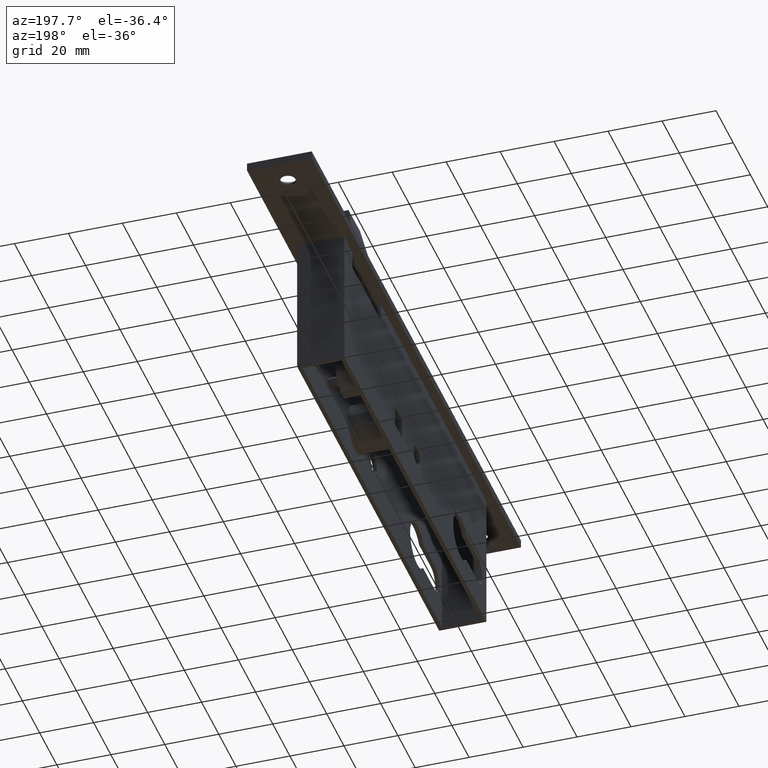
[diagram: clean part render]
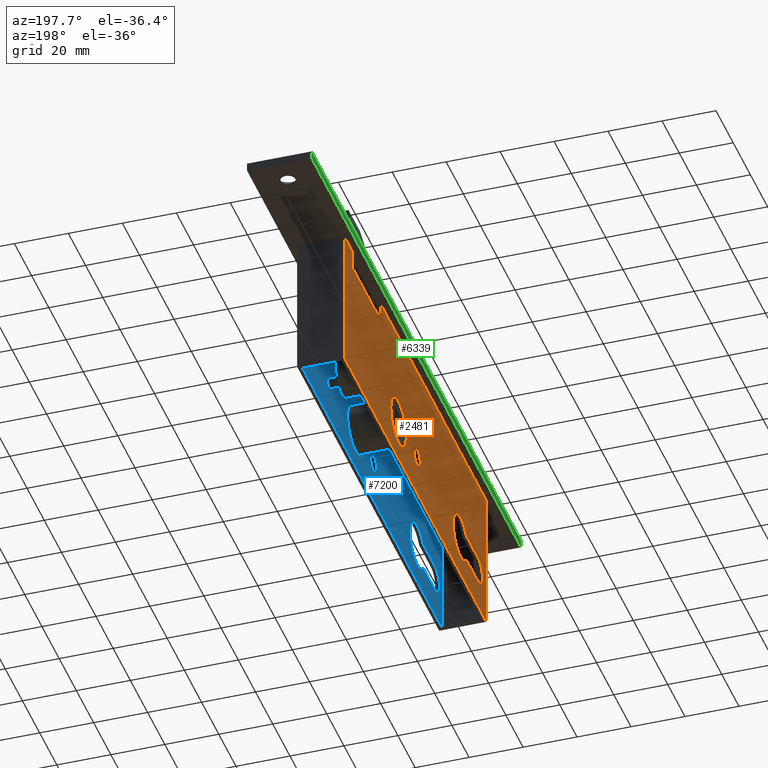
[diagram: same view with three faces highlighted in distinct colors, each labeled with its STEP entity id]
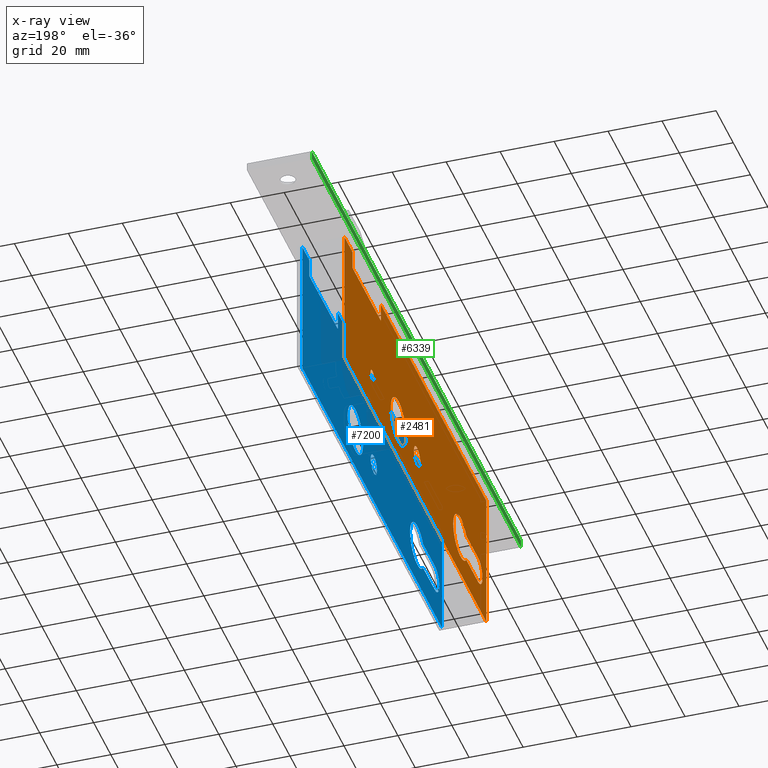
[diagram: x-ray of the same camera — body ghosted, the three highlighted faces saturated]
A machine part, auxiliary view with three faces highlighted in distinct colors.
The next image is the same camera in x-ray (body ghosted, the three faces saturated) — at least one of them is partly hidden behind the body in this view.
Their STEP definitions:

[orange] entity #2481 — the highlighted planar face has unit normal (1, -0, 0).
#92 = EDGE_CURVE ( 'NONE', #420, #6940, #1876, .T. ) ;
#162 = CARTESIAN_POINT ( 'NONE',  ( -8.749999999999998200, 60.00000000000000000, -37.00000000000000700 ) ) ;
#205 = CARTESIAN_POINT ( 'NONE',  ( -8.749999999999980500, 195.0000000000000000, -53.00000000000000000 ) ) ;
#234 = CARTESIAN_POINT ( 'NONE',  ( -8.749999999999991100, 110.5000000000000100, -37.00000000000000700 ) ) ;
#299 = ORIENTED_EDGE ( 'NONE', *, *, #11477, .T. ) ;
#332 = CARTESIAN_POINT ( 'NONE',  ( -8.750000000000001800, 152.5000000000000000, -7.000000000000004400 ) ) ;
#335 = ORIENTED_EDGE ( 'NONE', *, *, #10299, .T. ) ;
#420 = VERTEX_POINT ( 'NONE', #332 ) ;
#532 = ORIENTED_EDGE ( 'NONE', *, *, #5417, .F. ) ;
#587 = VECTOR ( 'NONE', #1703, 1000.000000000000000 ) ;
#602 = VERTEX_POINT ( 'NONE', #7357 ) ;
#607 = AXIS2_PLACEMENT_3D ( 'NONE', #11773, #3119, #1016 ) ;
#612 = DIRECTION ( 'NONE',  ( 0.0000000000000000000, 1.000000000000000000, 0.0000000000000000000 ) ) ;
#744 = CIRCLE ( 'NONE', #1205, 3.699999999999994800 ) ;
#850 = DIRECTION ( 'NONE',  ( 1.261617073437677800E-016, 1.000000000000000000, -0.0000000000000000000 ) ) ;
#946 = AXIS2_PLACEMENT_3D ( 'NONE', #5907, #2722, #8207 ) ;
#1016 = DIRECTION ( 'NONE',  ( 1.927470528863111400E-016, 1.000000000000000000, 0.0000000000000000000 ) ) ;
#1205 = AXIS2_PLACEMENT_3D ( 'NONE', #234, #7838, #3517 ) ;
#1208 = CARTESIAN_POINT ( 'NONE',  ( -8.749999999999998200, 39.75000000000000000, -42.25000000000000700 ) ) ;
#1273 = CARTESIAN_POINT ( 'NONE',  ( -8.750000000000001800, 185.5000000000000000, 0.0000000000000000000 ) ) ;
#1289 = CARTESIAN_POINT ( 'NONE',  ( -8.749999999999998200, 60.00000000000000000, -37.00000000000000700 ) ) ;
#1450 = FACE_BOUND ( 'NONE', #12677, .T. ) ;
#1615 = DIRECTION ( 'NONE',  ( -1.261617073437677800E-016, -1.000000000000000000, 0.0000000000000000000 ) ) ;
#1703 = DIRECTION ( 'NONE',  ( 0.0000000000000000000, 0.0000000000000000000, 1.000000000000000000 ) ) ;
#1711 = CARTESIAN_POINT ( 'NONE',  ( -8.749999999999980500, 195.0000000000000000, -31.75000000000000000 ) ) ;
#1722 = CARTESIAN_POINT ( 'NONE',  ( -8.749999999999996400, 68.49999999999998600, -37.00000000000000700 ) ) ;
#1741 = DIRECTION ( 'NONE',  ( 0.0000000000000000000, 1.000000000000000000, 0.0000000000000000000 ) ) ;
#1765 = CARTESIAN_POINT ( 'NONE',  ( -8.749999999999998200, 39.75000000000000000, -31.75000000000000000 ) ) ;
#1804 = CARTESIAN_POINT ( 'NONE',  ( -8.749999999999980500, 195.0000000000000000, 0.0000000000000000000 ) ) ;
#1876 = LINE ( 'NONE', #6869, #4417 ) ;
#1922 = EDGE_CURVE ( 'NONE', #4850, #13785, #6399, .T. ) ;
#1953 = ORIENTED_EDGE ( 'NONE', *, *, #4915, .T. ) ;
#1978 = FACE_OUTER_BOUND ( 'NONE', #4349, .T. ) ;
#2082 = DIRECTION ( 'NONE',  ( 1.261617073437677800E-016, 1.000000000000000000, 0.0000000000000000000 ) ) ;
#2161 = DIRECTION ( 'NONE',  ( 0.0000000000000000000, 1.000000000000000000, 0.0000000000000000000 ) ) ;
#2390 = VERTEX_POINT ( 'NONE', #1722 ) ;
#2445 = ORIENTED_EDGE ( 'NONE', *, *, #92, .T. ) ;
#2481 = ADVANCED_FACE ( 'NONE', ( #13073, #4865, #1450, #3520, #1978 ), #14049, .F. ) ;
#2722 = DIRECTION ( 'NONE',  ( 1.000000000000000000, -1.261617073437677800E-016, 0.0000000000000000000 ) ) ;
#3092 = VERTEX_POINT ( 'NONE', #1208 ) ;
#3118 = AXIS2_PLACEMENT_3D ( 'NONE', #11716, #10717, #8526 ) ;
#3119 = DIRECTION ( 'NONE',  ( 1.000000000000000000, -1.261617073437677800E-016, 0.0000000000000000000 ) ) ;
#3189 = EDGE_CURVE ( 'NONE', #5306, #10434, #5877, .T. ) ;
#3325 = CARTESIAN_POINT ( 'NONE',  ( -8.749999999999980500, 195.0000000000000000, -42.25000000000000700 ) ) ;
#3373 = EDGE_CURVE ( 'NONE', #10201, #2390, #6202, .T. ) ;
#3517 = DIRECTION ( 'NONE',  ( 0.0000000000000000000, 1.000000000000000000, 0.0000000000000000000 ) ) ;
#3520 = FACE_BOUND ( 'NONE', #8317, .T. ) ;
#3587 = VECTOR ( 'NONE', #850, 1000.000000000000000 ) ;
#3617 = CARTESIAN_POINT ( 'NONE',  ( -8.749999999999980500, 195.0000000000000000, -53.00000000000000000 ) ) ;
#3632 = AXIS2_PLACEMENT_3D ( 'NONE', #9738, #7590, #2161 ) ;
#3741 = CARTESIAN_POINT ( 'NONE',  ( -8.750000000000001800, 152.5000000000000000, -7.000000000000004400 ) ) ;
#3842 = ORIENTED_EDGE ( 'NONE', *, *, #4807, .T. ) ;
#4084 = CARTESIAN_POINT ( 'NONE',  ( -8.749999999999998200, 53.31512902143953200, -42.25000000000000700 ) ) ;
#4279 = VERTEX_POINT ( 'NONE', #5456 ) ;
#4349 = EDGE_LOOP ( 'NONE', ( #5017, #335, #6606, #532, #13549, #11478, #12841, #2445 ) ) ;
#4417 = VECTOR ( 'NONE', #13428, 1000.000000000000000 ) ;
#4550 = CARTESIAN_POINT ( 'NONE',  ( -8.749999999999991100, 106.8000000000000300, -37.00000000000000700 ) ) ;
#4567 = VERTEX_POINT ( 'NONE', #1765 ) ;
#4637 = AXIS2_PLACEMENT_3D ( 'NONE', #11455, #8321, #1741 ) ;
#4642 = EDGE_CURVE ( 'NONE', #6940, #10647, #11813, .T. ) ;
#4747 = CARTESIAN_POINT ( 'NONE',  ( -8.750000000000001800, 160.5500000000000100, -38.00000000000000000 ) ) ;
#4807 = EDGE_CURVE ( 'NONE', #3092, #10201, #6860, .T. ) ;
#4850 = VERTEX_POINT ( 'NONE', #9710 ) ;
#4865 = FACE_BOUND ( 'NONE', #12495, .T. ) ;
#4885 = CIRCLE ( 'NONE', #6964, 8.499999999999992900 ) ;
#4915 = EDGE_CURVE ( 'NONE', #10253, #7323, #744, .T. ) ;
#4935 = CARTESIAN_POINT ( 'NONE',  ( -8.750000000000001800, 185.5000000000000000, 0.0000000000000000000 ) ) ;
#5017 = ORIENTED_EDGE ( 'NONE', *, *, #4642, .T. ) ;
#5147 = VECTOR ( 'NONE', #12250, 1000.000000000000000 ) ;
#5225 = CARTESIAN_POINT ( 'NONE',  ( -8.749999999999980500, 195.0000000000000000, -53.00000000000000000 ) ) ;
#5306 = VERTEX_POINT ( 'NONE', #5225 ) ;
#5332 = ORIENTED_EDGE ( 'NONE', *, *, #1922, .T. ) ;
#5417 = EDGE_CURVE ( 'NONE', #12494, #5306, #8238, .T. ) ;
#5433 = CARTESIAN_POINT ( 'NONE',  ( -8.749999999999980500, 195.0000000000000000, 0.0000000000000000000 ) ) ;
#5456 = CARTESIAN_POINT ( 'NONE',  ( -8.749999999999985800, 152.5000000000000000, 0.0000000000000000000 ) ) ;
#5532 = ORIENTED_EDGE ( 'NONE', *, *, #7120, .T. ) ;
#5877 = LINE ( 'NONE', #3617, #11329 ) ;
#5907 = CARTESIAN_POINT ( 'NONE',  ( -8.749999999999987600, 132.0000000000000000, -37.00000000000000700 ) ) ;
#6202 = CIRCLE ( 'NONE', #10241, 8.499999999999992900 ) ;
#6277 = EDGE_CURVE ( 'NONE', #602, #6616, #8852, .T. ) ;
#6319 = CARTESIAN_POINT ( 'NONE',  ( -8.750000000000000000, 30.00000000000000000, -0.0000000000000000000 ) ) ;
#6399 = CIRCLE ( 'NONE', #4637, 2.000000000000001800 ) ;
#6458 = CARTESIAN_POINT ( 'NONE',  ( -8.749999999999996400, 53.31512902143953200, -31.75000000000000000 ) ) ;
#6504 = CARTESIAN_POINT ( 'NONE',  ( -8.749999999999980500, 195.0000000000000000, 0.0000000000000000000 ) ) ;
#6606 = ORIENTED_EDGE ( 'NONE', *, *, #3189, .F. ) ;
#6616 = VERTEX_POINT ( 'NONE', #13530 ) ;
#6688 = LINE ( 'NONE', #1711, #9278 ) ;
#6860 = LINE ( 'NONE', #3325, #7036 ) ;
#6869 = CARTESIAN_POINT ( 'NONE',  ( -8.750000000000001800, 185.5000000000000000, -7.000000000000000000 ) ) ;
#6940 = VERTEX_POINT ( 'NONE', #10861 ) ;
#6964 = AXIS2_PLACEMENT_3D ( 'NONE', #1289, #13090, #9971 ) ;
#7027 = EDGE_CURVE ( 'NONE', #6616, #602, #11531, .T. ) ;
#7036 = VECTOR ( 'NONE', #2082, 1000.000000000000000 ) ;
#7120 = EDGE_CURVE ( 'NONE', #2390, #10287, #4885, .T. ) ;
#7250 = LINE ( 'NONE', #3741, #9816 ) ;
#7323 = VERTEX_POINT ( 'NONE', #4550 ) ;
#7357 = CARTESIAN_POINT ( 'NONE',  ( -8.749999999999985800, 141.0000000000000300, -37.00000000000000700 ) ) ;
#7590 = DIRECTION ( 'NONE',  ( 1.000000000000000000, -1.261617073437677800E-016, 0.0000000000000000000 ) ) ;
#7646 = DIRECTION ( 'NONE',  ( 0.0000000000000000000, 1.000000000000000000, 0.0000000000000000000 ) ) ;
#7838 = DIRECTION ( 'NONE',  ( 1.000000000000000000, -1.261617073437677800E-016, 0.0000000000000000000 ) ) ;
#8101 = DIRECTION ( 'NONE',  ( 0.0000000000000000000, -0.0000000000000000000, -1.000000000000000000 ) ) ;
#8108 = ORIENTED_EDGE ( 'NONE', *, *, #6277, .T. ) ;
#8126 = EDGE_CURVE ( 'NONE', #4279, #420, #7250, .T. ) ;
#8207 = DIRECTION ( 'NONE',  ( 1.927470528863111400E-016, 1.000000000000000000, 0.0000000000000000000 ) ) ;
#8238 = LINE ( 'NONE', #205, #5147 ) ;
#8317 = EDGE_LOOP ( 'NONE', ( #1953, #12623 ) ) ;
#8321 = DIRECTION ( 'NONE',  ( 1.000000000000000000, -1.051347561198064900E-017, -0.0000000000000000000 ) ) ;
#8329 = VECTOR ( 'NONE', #9192, 1000.000000000000000 ) ;
#8526 = DIRECTION ( 'NONE',  ( 1.261617073437677800E-016, 1.000000000000000000, 0.0000000000000000000 ) ) ;
#8557 = CARTESIAN_POINT ( 'NONE',  ( -8.749999999999991100, 114.2000000000000000, -37.00000000000000700 ) ) ;
#8852 = CIRCLE ( 'NONE', #946, 9.000000000000035500 ) ;
#9019 = LINE ( 'NONE', #10519, #8329 ) ;
#9056 = VECTOR ( 'NONE', #13113, 1000.000000000000000 ) ;
#9192 = DIRECTION ( 'NONE',  ( -0.0000000000000000000, -0.0000000000000000000, 1.000000000000000000 ) ) ;
#9236 = EDGE_CURVE ( 'NONE', #10287, #4567, #6688, .T. ) ;
#9278 = VECTOR ( 'NONE', #1615, 1000.000000000000000 ) ;
#9710 = CARTESIAN_POINT ( 'NONE',  ( -8.750000000000001800, 164.5500000000000100, -38.00000000000000000 ) ) ;
#9738 = CARTESIAN_POINT ( 'NONE',  ( -8.749999999999998200, 39.75000000000000000, -37.00000000000000700 ) ) ;
#9816 = VECTOR ( 'NONE', #8101, 1000.000000000000000 ) ;
#9971 = DIRECTION ( 'NONE',  ( 2.040851148208010000E-016, 1.000000000000000000, 0.0000000000000000000 ) ) ;
#10117 = AXIS2_PLACEMENT_3D ( 'NONE', #12534, #10374, #612 ) ;
#10201 = VERTEX_POINT ( 'NONE', #4084 ) ;
#10232 = VERTEX_POINT ( 'NONE', #6319 ) ;
#10241 = AXIS2_PLACEMENT_3D ( 'NONE', #162, #13129, #10946 ) ;
#10253 = VERTEX_POINT ( 'NONE', #8557 ) ;
#10287 = VERTEX_POINT ( 'NONE', #6458 ) ;
#10299 = EDGE_CURVE ( 'NONE', #10647, #10434, #13492, .T. ) ;
#10352 = EDGE_LOOP ( 'NONE', ( #5332, #13261 ) ) ;
#10374 = DIRECTION ( 'NONE',  ( 1.000000000000000000, -1.261617073437677800E-016, 0.0000000000000000000 ) ) ;
#10404 = CIRCLE ( 'NONE', #11939, 2.000000000000001800 ) ;
#10434 = VERTEX_POINT ( 'NONE', #5433 ) ;
#10519 = CARTESIAN_POINT ( 'NONE',  ( -8.750000000000000000, 30.00000000000000000, -53.00000000000000000 ) ) ;
#10647 = VERTEX_POINT ( 'NONE', #1273 ) ;
#10717 = DIRECTION ( 'NONE',  ( 1.000000000000000000, -1.261617073437677800E-016, 0.0000000000000000000 ) ) ;
#10742 = EDGE_CURVE ( 'NONE', #12494, #10232, #9019, .T. ) ;
#10830 = ORIENTED_EDGE ( 'NONE', *, *, #7027, .T. ) ;
#10861 = CARTESIAN_POINT ( 'NONE',  ( -8.750000000000001800, 185.5000000000000000, -7.000000000000000000 ) ) ;
#10946 = DIRECTION ( 'NONE',  ( 2.040851148208010000E-016, 1.000000000000000000, 0.0000000000000000000 ) ) ;
#11113 = CIRCLE ( 'NONE', #10117, 3.699999999999994800 ) ;
#11329 = VECTOR ( 'NONE', #12328, 1000.000000000000000 ) ;
#11455 = CARTESIAN_POINT ( 'NONE',  ( -8.750000000000001800, 162.5500000000000100, -38.00000000000000000 ) ) ;
#11477 = EDGE_CURVE ( 'NONE', #4567, #3092, #13285, .T. ) ;
#11478 = ORIENTED_EDGE ( 'NONE', *, *, #14163, .T. ) ;
#11531 = CIRCLE ( 'NONE', #607, 9.000000000000035500 ) ;
#11716 = CARTESIAN_POINT ( 'NONE',  ( -8.749999999999980500, 195.0000000000000000, -53.00000000000000000 ) ) ;
#11773 = CARTESIAN_POINT ( 'NONE',  ( -8.749999999999987600, 132.0000000000000000, -37.00000000000000700 ) ) ;
#11813 = LINE ( 'NONE', #4935, #587 ) ;
#11939 = AXIS2_PLACEMENT_3D ( 'NONE', #14078, #13059, #7646 ) ;
#11955 = CARTESIAN_POINT ( 'NONE',  ( -8.750000000000000000, 30.00000000000000000, -53.00000000000000000 ) ) ;
#12250 = DIRECTION ( 'NONE',  ( 1.261617073437677800E-016, 1.000000000000000000, -0.0000000000000000000 ) ) ;
#12328 = DIRECTION ( 'NONE',  ( -0.0000000000000000000, -0.0000000000000000000, 1.000000000000000000 ) ) ;
#12494 = VERTEX_POINT ( 'NONE', #11955 ) ;
#12495 = EDGE_LOOP ( 'NONE', ( #13872, #299, #3842, #12880, #5532 ) ) ;
#12534 = CARTESIAN_POINT ( 'NONE',  ( -8.749999999999991100, 110.5000000000000100, -37.00000000000000700 ) ) ;
#12623 = ORIENTED_EDGE ( 'NONE', *, *, #12961, .T. ) ;
#12677 = EDGE_LOOP ( 'NONE', ( #8108, #10830 ) ) ;
#12841 = ORIENTED_EDGE ( 'NONE', *, *, #8126, .T. ) ;
#12880 = ORIENTED_EDGE ( 'NONE', *, *, #3373, .T. ) ;
#12961 = EDGE_CURVE ( 'NONE', #7323, #10253, #11113, .T. ) ;
#13059 = DIRECTION ( 'NONE',  ( 1.000000000000000000, -1.051347561198064900E-017, -0.0000000000000000000 ) ) ;
#13073 = FACE_BOUND ( 'NONE', #10352, .T. ) ;
#13090 = DIRECTION ( 'NONE',  ( 1.000000000000000000, -1.261617073437677800E-016, 0.0000000000000000000 ) ) ;
#13113 = DIRECTION ( 'NONE',  ( 1.261617073437677800E-016, 1.000000000000000000, -0.0000000000000000000 ) ) ;
#13129 = DIRECTION ( 'NONE',  ( 1.000000000000000000, -1.261617073437677800E-016, 0.0000000000000000000 ) ) ;
#13261 = ORIENTED_EDGE ( 'NONE', *, *, #14169, .T. ) ;
#13285 = CIRCLE ( 'NONE', #3632, 5.250000000000004400 ) ;
#13311 = LINE ( 'NONE', #1804, #3587 ) ;
#13428 = DIRECTION ( 'NONE',  ( 0.0000000000000000000, 1.000000000000000000, 1.314184451497581000E-016 ) ) ;
#13492 = LINE ( 'NONE', #6504, #9056 ) ;
#13530 = CARTESIAN_POINT ( 'NONE',  ( -8.749999999999989300, 122.9999999999999900, -37.00000000000000700 ) ) ;
#13549 = ORIENTED_EDGE ( 'NONE', *, *, #10742, .T. ) ;
#13785 = VERTEX_POINT ( 'NONE', #4747 ) ;
#13872 = ORIENTED_EDGE ( 'NONE', *, *, #9236, .T. ) ;
#14049 = PLANE ( 'NONE',  #3118 ) ;
#14078 = CARTESIAN_POINT ( 'NONE',  ( -8.750000000000001800, 162.5500000000000100, -38.00000000000000000 ) ) ;
#14163 = EDGE_CURVE ( 'NONE', #10232, #4279, #13311, .T. ) ;
#14169 = EDGE_CURVE ( 'NONE', #13785, #4850, #10404, .T. ) ;

[blue] entity #7200 — the highlighted planar face has unit normal (-1, -0, 0).
#3 = VERTEX_POINT ( 'NONE', #13007 ) ;
#4 = CARTESIAN_POINT ( 'NONE',  ( 7.249999999999981300, 193.5000000000000000, 0.0000000000000000000 ) ) ;
#52 = EDGE_CURVE ( 'NONE', #5827, #467, #13673, .T. ) ;
#266 = VECTOR ( 'NONE', #10520, 1000.000000000000000 ) ;
#322 = DIRECTION ( 'NONE',  ( -1.000000000000000000, -1.231439504551437200E-016, -0.0000000000000000000 ) ) ;
#467 = VERTEX_POINT ( 'NONE', #2661 ) ;
#625 = DIRECTION ( 'NONE',  ( -0.0000000000000000000, -0.0000000000000000000, 1.000000000000000000 ) ) ;
#642 = DIRECTION ( 'NONE',  ( 0.0000000000000000000, 0.0000000000000000000, 1.000000000000000000 ) ) ;
#671 = CARTESIAN_POINT ( 'NONE',  ( 7.249999999999981300, 193.5000000000000000, 0.0000000000000000000 ) ) ;
#800 = AXIS2_PLACEMENT_3D ( 'NONE', #5233, #11777, #7354 ) ;
#862 = AXIS2_PLACEMENT_3D ( 'NONE', #8503, #11736, #5204 ) ;
#966 = AXIS2_PLACEMENT_3D ( 'NONE', #10308, #5805, #2629 ) ;
#977 = CARTESIAN_POINT ( 'NONE',  ( 7.249999999999978700, 185.5000000000000000, -7.000000000000000000 ) ) ;
#1056 = ORIENTED_EDGE ( 'NONE', *, *, #2973, .F. ) ;
#1147 = CARTESIAN_POINT ( 'NONE',  ( 7.249999999999990200, 122.9999999999999900, -37.00000000000000700 ) ) ;
#1466 = LINE ( 'NONE', #4327, #5038 ) ;
#1521 = CARTESIAN_POINT ( 'NONE',  ( 7.249999999999990200, 114.2000000000000000, -37.00000000000000700 ) ) ;
#1601 = EDGE_CURVE ( 'NONE', #9655, #2320, #9329, .T. ) ;
#1733 = EDGE_CURVE ( 'NONE', #9655, #1875, #1466, .T. ) ;
#1875 = VERTEX_POINT ( 'NONE', #2088 ) ;
#1958 = DIRECTION ( 'NONE',  ( 9.637352644315571800E-017, -1.000000000000000000, 0.0000000000000000000 ) ) ;
#1966 = VECTOR ( 'NONE', #13122, 1000.000000000000000 ) ;
#2008 = CARTESIAN_POINT ( 'NONE',  ( 7.249999999999989300, 132.0000000000000000, -37.00000000000000700 ) ) ;
#2070 = CARTESIAN_POINT ( 'NONE',  ( 7.249999999999998200, 53.31512902143953200, -42.25000000000000700 ) ) ;
#2088 = CARTESIAN_POINT ( 'NONE',  ( 7.250000000000000900, 31.50000000000000000, -53.00000000000000000 ) ) ;
#2132 = PLANE ( 'NONE',  #10618 ) ;
#2180 = DIRECTION ( 'NONE',  ( 1.231439504551437200E-016, -1.000000000000000000, 0.0000000000000000000 ) ) ;
#2285 = VERTEX_POINT ( 'NONE', #3762 ) ;
#2320 = VERTEX_POINT ( 'NONE', #3852 ) ;
#2327 = FACE_BOUND ( 'NONE', #9831, .T. ) ;
#2377 = AXIS2_PLACEMENT_3D ( 'NONE', #11055, #322, #6673 ) ;
#2629 = DIRECTION ( 'NONE',  ( 1.020425574104004100E-016, -1.000000000000000000, 0.0000000000000000000 ) ) ;
#2637 = EDGE_CURVE ( 'NONE', #8191, #3, #6385, .T. ) ;
#2661 = CARTESIAN_POINT ( 'NONE',  ( 7.249999999999988500, 141.0000000000000300, -37.00000000000000700 ) ) ;
#2669 = ORIENTED_EDGE ( 'NONE', *, *, #2905, .T. ) ;
#2905 = EDGE_CURVE ( 'NONE', #1875, #6560, #14098, .T. ) ;
#2932 = EDGE_CURVE ( 'NONE', #13114, #6560, #7409, .T. ) ;
#2973 = EDGE_CURVE ( 'NONE', #6990, #9609, #6049, .T. ) ;
#3179 = CARTESIAN_POINT ( 'NONE',  ( 7.249999999999981300, 193.5000000000000000, -53.00000000000000000 ) ) ;
#3197 = FACE_BOUND ( 'NONE', #8442, .T. ) ;
#3237 = CARTESIAN_POINT ( 'NONE',  ( 7.249999999999999100, 60.00000000000000000, -37.00000000000000700 ) ) ;
#3295 = CARTESIAN_POINT ( 'NONE',  ( 7.249999999999981300, 193.5000000000000000, -31.75000000000000000 ) ) ;
#3353 = ORIENTED_EDGE ( 'NONE', *, *, #13922, .F. ) ;
#3432 = CIRCLE ( 'NONE', #8736, 9.000000000000021300 ) ;
#3540 = VECTOR ( 'NONE', #5477, 1000.000000000000000 ) ;
#3599 = VERTEX_POINT ( 'NONE', #1521 ) ;
#3762 = CARTESIAN_POINT ( 'NONE',  ( 7.249999999999978700, 185.5000000000000000, 0.0000000000000000000 ) ) ;
#3852 = CARTESIAN_POINT ( 'NONE',  ( 7.249999999999981300, 193.5000000000000000, 0.0000000000000000000 ) ) ;
#4000 = VECTOR ( 'NONE', #10913, 1000.000000000000000 ) ;
#4012 = ORIENTED_EDGE ( 'NONE', *, *, #6785, .F. ) ;
#4127 = VERTEX_POINT ( 'NONE', #12470 ) ;
#4300 = DIRECTION ( 'NONE',  ( 1.020425574104004100E-016, -1.000000000000000000, 0.0000000000000000000 ) ) ;
#4327 = CARTESIAN_POINT ( 'NONE',  ( 7.249999999999981300, 193.5000000000000000, -53.00000000000000000 ) ) ;
#4593 = LINE ( 'NONE', #10107, #7846 ) ;
#4600 = ORIENTED_EDGE ( 'NONE', *, *, #13340, .T. ) ;
#4649 = DIRECTION ( 'NONE',  ( 1.231439504551437200E-016, -1.000000000000000000, 0.0000000000000000000 ) ) ;
#4828 = VERTEX_POINT ( 'NONE', #9889 ) ;
#4923 = CIRCLE ( 'NONE', #8717, 3.699999999999994800 ) ;
#5038 = VECTOR ( 'NONE', #13213, 1000.000000000000000 ) ;
#5204 = DIRECTION ( 'NONE',  ( 2.344220913482175100E-016, -1.000000000000000000, 0.0000000000000000000 ) ) ;
#5233 = CARTESIAN_POINT ( 'NONE',  ( 7.249999999999997300, 39.75000000000000000, -37.00000000000000700 ) ) ;
#5477 = DIRECTION ( 'NONE',  ( 1.231439504551437200E-016, -1.000000000000000000, 0.0000000000000000000 ) ) ;
#5508 = LINE ( 'NONE', #11733, #4000 ) ;
#5805 = DIRECTION ( 'NONE',  ( -1.000000000000000000, -1.231439504551437200E-016, -0.0000000000000000000 ) ) ;
#5815 = EDGE_CURVE ( 'NONE', #13114, #4127, #5508, .T. ) ;
#5827 = VERTEX_POINT ( 'NONE', #1147 ) ;
#6025 = ORIENTED_EDGE ( 'NONE', *, *, #13440, .F. ) ;
#6049 = CIRCLE ( 'NONE', #12709, 8.500000000000000000 ) ;
#6126 = ORIENTED_EDGE ( 'NONE', *, *, #1733, .T. ) ;
#6385 = LINE ( 'NONE', #3295, #1966 ) ;
#6560 = VERTEX_POINT ( 'NONE', #9146 ) ;
#6673 = DIRECTION ( 'NONE',  ( 9.637352644315571800E-017, -1.000000000000000000, 0.0000000000000000000 ) ) ;
#6785 = EDGE_CURVE ( 'NONE', #3599, #9841, #13456, .T. ) ;
#6990 = VERTEX_POINT ( 'NONE', #12117 ) ;
#7019 = ORIENTED_EDGE ( 'NONE', *, *, #52, .F. ) ;
#7198 = EDGE_CURVE ( 'NONE', #2320, #2285, #9335, .T. ) ;
#7200 = ADVANCED_FACE ( 'NONE', ( #8988, #3197, #11376, #2327 ), #2132, .T. ) ;
#7259 = VECTOR ( 'NONE', #8593, 1000.000000000000000 ) ;
#7354 = DIRECTION ( 'NONE',  ( 1.652117596168386300E-016, -1.000000000000000000, 0.0000000000000000000 ) ) ;
#7409 = LINE ( 'NONE', #671, #266 ) ;
#7501 = DIRECTION ( 'NONE',  ( -1.000000000000000000, -1.231439504551437200E-016, -0.0000000000000000000 ) ) ;
#7603 = CARTESIAN_POINT ( 'NONE',  ( 7.249999999999991100, 110.5000000000000100, -37.00000000000000700 ) ) ;
#7631 = CARTESIAN_POINT ( 'NONE',  ( 7.249999999999986700, 152.5000000000000000, 0.0000000000000000000 ) ) ;
#7680 = VECTOR ( 'NONE', #642, 1000.000000000000000 ) ;
#7698 = ORIENTED_EDGE ( 'NONE', *, *, #1601, .F. ) ;
#7700 = ORIENTED_EDGE ( 'NONE', *, *, #9937, .T. ) ;
#7846 = VECTOR ( 'NONE', #4649, 1000.000000000000000 ) ;
#7966 = CIRCLE ( 'NONE', #966, 8.500000000000000000 ) ;
#8021 = ORIENTED_EDGE ( 'NONE', *, *, #7198, .F. ) ;
#8191 = VERTEX_POINT ( 'NONE', #13459 ) ;
#8226 = LINE ( 'NONE', #10888, #13694 ) ;
#8357 = EDGE_LOOP ( 'NONE', ( #13672, #7700, #4600, #8021, #7698, #6126, #2669, #10341 ) ) ;
#8442 = EDGE_LOOP ( 'NONE', ( #4012, #13708 ) ) ;
#8503 = CARTESIAN_POINT ( 'NONE',  ( 7.249999999999991100, 110.5000000000000100, -37.00000000000000700 ) ) ;
#8593 = DIRECTION ( 'NONE',  ( -0.0000000000000000000, -0.0000000000000000000, 1.000000000000000000 ) ) ;
#8611 = CARTESIAN_POINT ( 'NONE',  ( 7.249999999999981300, 193.5000000000000000, -53.00000000000000000 ) ) ;
#8717 = AXIS2_PLACEMENT_3D ( 'NONE', #7603, #10930, #9852 ) ;
#8736 = AXIS2_PLACEMENT_3D ( 'NONE', #2008, #14092, #1958 ) ;
#8792 = ORIENTED_EDGE ( 'NONE', *, *, #2637, .F. ) ;
#8988 = FACE_OUTER_BOUND ( 'NONE', #8357, .T. ) ;
#9146 = CARTESIAN_POINT ( 'NONE',  ( 7.250000000000000900, 31.50000000000000000, 0.0000000000000000000 ) ) ;
#9329 = LINE ( 'NONE', #3179, #7259 ) ;
#9335 = LINE ( 'NONE', #4, #3540 ) ;
#9550 = VERTEX_POINT ( 'NONE', #977 ) ;
#9609 = VERTEX_POINT ( 'NONE', #2070 ) ;
#9655 = VERTEX_POINT ( 'NONE', #11138 ) ;
#9720 = EDGE_LOOP ( 'NONE', ( #6025, #7019 ) ) ;
#9831 = EDGE_LOOP ( 'NONE', ( #10155, #3353, #1056, #10274, #8792 ) ) ;
#9841 = VERTEX_POINT ( 'NONE', #12835 ) ;
#9852 = DIRECTION ( 'NONE',  ( 2.344220913482175100E-016, -1.000000000000000000, 0.0000000000000000000 ) ) ;
#9889 = CARTESIAN_POINT ( 'NONE',  ( 7.249999999999997300, 39.75000000000000000, -42.25000000000000700 ) ) ;
#9937 = EDGE_CURVE ( 'NONE', #4127, #9550, #8226, .T. ) ;
#10107 = CARTESIAN_POINT ( 'NONE',  ( 7.249999999999981300, 193.5000000000000000, -42.25000000000000700 ) ) ;
#10155 = ORIENTED_EDGE ( 'NONE', *, *, #13071, .F. ) ;
#10274 = ORIENTED_EDGE ( 'NONE', *, *, #11364, .F. ) ;
#10308 = CARTESIAN_POINT ( 'NONE',  ( 7.249999999999999100, 60.00000000000000000, -37.00000000000000700 ) ) ;
#10341 = ORIENTED_EDGE ( 'NONE', *, *, #2932, .F. ) ;
#10369 = EDGE_CURVE ( 'NONE', #9841, #3599, #4923, .T. ) ;
#10447 = CARTESIAN_POINT ( 'NONE',  ( 7.249999999999978700, 185.5000000000000000, 0.0000000000000000000 ) ) ;
#10472 = CARTESIAN_POINT ( 'NONE',  ( 7.250000000000000900, 31.50000000000000000, -53.00000000000000000 ) ) ;
#10520 = DIRECTION ( 'NONE',  ( 1.231439504551437200E-016, -1.000000000000000000, 0.0000000000000000000 ) ) ;
#10618 = AXIS2_PLACEMENT_3D ( 'NONE', #8611, #10932, #2180 ) ;
#10888 = CARTESIAN_POINT ( 'NONE',  ( 7.249999999999978700, 185.5000000000000000, -7.000000000000000000 ) ) ;
#10913 = DIRECTION ( 'NONE',  ( 0.0000000000000000000, 0.0000000000000000000, -1.000000000000000000 ) ) ;
#10930 = DIRECTION ( 'NONE',  ( -1.000000000000000000, -1.231439504551437200E-016, -0.0000000000000000000 ) ) ;
#10932 = DIRECTION ( 'NONE',  ( -1.000000000000000000, -1.231439504551437200E-016, 0.0000000000000000000 ) ) ;
#11055 = CARTESIAN_POINT ( 'NONE',  ( 7.249999999999989300, 132.0000000000000000, -37.00000000000000700 ) ) ;
#11138 = CARTESIAN_POINT ( 'NONE',  ( 7.249999999999981300, 193.5000000000000000, -53.00000000000000000 ) ) ;
#11141 = VECTOR ( 'NONE', #625, 1000.000000000000000 ) ;
#11250 = LINE ( 'NONE', #10447, #7680 ) ;
#11364 = EDGE_CURVE ( 'NONE', #3, #6990, #7966, .T. ) ;
#11376 = FACE_BOUND ( 'NONE', #9720, .T. ) ;
#11733 = CARTESIAN_POINT ( 'NONE',  ( 7.249999999999985800, 152.5000000000000000, -7.000000000000004400 ) ) ;
#11736 = DIRECTION ( 'NONE',  ( -1.000000000000000000, -1.231439504551437200E-016, -0.0000000000000000000 ) ) ;
#11777 = DIRECTION ( 'NONE',  ( -1.000000000000000000, -1.231439504551437200E-016, -0.0000000000000000000 ) ) ;
#12117 = CARTESIAN_POINT ( 'NONE',  ( 7.249999999999998200, 68.49999999999998600, -37.00000000000000700 ) ) ;
#12470 = CARTESIAN_POINT ( 'NONE',  ( 7.249999999999971600, 152.5000000000000000, -7.000000000000004400 ) ) ;
#12709 = AXIS2_PLACEMENT_3D ( 'NONE', #3237, #7501, #4300 ) ;
#12835 = CARTESIAN_POINT ( 'NONE',  ( 7.249999999999992000, 106.8000000000000300, -37.00000000000000700 ) ) ;
#13007 = CARTESIAN_POINT ( 'NONE',  ( 7.250000000000000900, 53.31512902143953200, -31.75000000000000000 ) ) ;
#13026 = DIRECTION ( 'NONE',  ( -1.231439504551437200E-016, 1.000000000000000000, 1.314184451497581300E-016 ) ) ;
#13071 = EDGE_CURVE ( 'NONE', #4828, #8191, #14056, .T. ) ;
#13114 = VERTEX_POINT ( 'NONE', #7631 ) ;
#13122 = DIRECTION ( 'NONE',  ( -1.231439504551437200E-016, 1.000000000000000000, 0.0000000000000000000 ) ) ;
#13213 = DIRECTION ( 'NONE',  ( 1.231439504551437200E-016, -1.000000000000000000, 0.0000000000000000000 ) ) ;
#13340 = EDGE_CURVE ( 'NONE', #9550, #2285, #11250, .T. ) ;
#13440 = EDGE_CURVE ( 'NONE', #467, #5827, #3432, .T. ) ;
#13456 = CIRCLE ( 'NONE', #862, 3.699999999999994800 ) ;
#13459 = CARTESIAN_POINT ( 'NONE',  ( 7.249999999999997300, 39.75000000000000000, -31.75000000000000000 ) ) ;
#13672 = ORIENTED_EDGE ( 'NONE', *, *, #5815, .T. ) ;
#13673 = CIRCLE ( 'NONE', #2377, 9.000000000000021300 ) ;
#13694 = VECTOR ( 'NONE', #13026, 1000.000000000000000 ) ;
#13708 = ORIENTED_EDGE ( 'NONE', *, *, #10369, .F. ) ;
#13922 = EDGE_CURVE ( 'NONE', #9609, #4828, #4593, .T. ) ;
#14056 = CIRCLE ( 'NONE', #800, 5.250000000000004400 ) ;
#14092 = DIRECTION ( 'NONE',  ( -1.000000000000000000, -1.231439504551437200E-016, -0.0000000000000000000 ) ) ;
#14098 = LINE ( 'NONE', #10472, #11141 ) ;

[green] entity #6339 — the highlighted planar face has unit normal (1, 0, 0).
#17 = EDGE_CURVE ( 'NONE', #4292, #12090, #11936, .T. ) ;
#521 = EDGE_CURVE ( 'NONE', #2731, #4292, #685, .T. ) ;
#685 = LINE ( 'NONE', #12719, #11569 ) ;
#2731 = VERTEX_POINT ( 'NONE', #3586 ) ;
#2787 = ORIENTED_EDGE ( 'NONE', *, *, #10722, .T. ) ;
#3182 = DIRECTION ( 'NONE',  ( -0.0000000000000000000, -0.0000000000000000000, -1.000000000000000000 ) ) ;
#3491 = LINE ( 'NONE', #12184, #6544 ) ;
#3586 = CARTESIAN_POINT ( 'NONE',  ( -12.00000000000000000, 243.0000000000000000, 3.000000000000000000 ) ) ;
#3649 = EDGE_CURVE ( 'NONE', #2731, #4121, #3491, .T. ) ;
#4121 = VERTEX_POINT ( 'NONE', #12418 ) ;
#4292 = VERTEX_POINT ( 'NONE', #11042 ) ;
#4364 = LINE ( 'NONE', #9002, #5900 ) ;
#5291 = CARTESIAN_POINT ( 'NONE',  ( -12.00000000000000000, 0.0000000000000000000, 3.000000000000000000 ) ) ;
#5900 = VECTOR ( 'NONE', #6686, 1000.000000000000000 ) ;
#5952 = PLANE ( 'NONE',  #8056 ) ;
#6321 = ORIENTED_EDGE ( 'NONE', *, *, #3649, .T. ) ;
#6339 = ADVANCED_FACE ( 'NONE', ( #7990 ), #5952, .F. ) ;
#6544 = VECTOR ( 'NONE', #13193, 1000.000000000000000 ) ;
#6686 = DIRECTION ( 'NONE',  ( -0.0000000000000000000, -1.000000000000000000, -0.0000000000000000000 ) ) ;
#7129 = DIRECTION ( 'NONE',  ( -0.0000000000000000000, -1.000000000000000000, -0.0000000000000000000 ) ) ;
#7990 = FACE_OUTER_BOUND ( 'NONE', #8050, .T. ) ;
#8050 = EDGE_LOOP ( 'NONE', ( #2787, #8536, #13559, #6321 ) ) ;
#8056 = AXIS2_PLACEMENT_3D ( 'NONE', #12649, #9207, #13705 ) ;
#8536 = ORIENTED_EDGE ( 'NONE', *, *, #17, .F. ) ;
#9002 = CARTESIAN_POINT ( 'NONE',  ( -12.00000000000000000, 0.0000000000000000000, 0.0000000000000000000 ) ) ;
#9207 = DIRECTION ( 'NONE',  ( 1.000000000000000000, 0.0000000000000000000, 0.0000000000000000000 ) ) ;
#10722 = EDGE_CURVE ( 'NONE', #4121, #12090, #4364, .T. ) ;
#11042 = CARTESIAN_POINT ( 'NONE',  ( -12.00000000000000000, 0.0000000000000000000, 3.000000000000000000 ) ) ;
#11569 = VECTOR ( 'NONE', #7129, 1000.000000000000000 ) ;
#11936 = LINE ( 'NONE', #5291, #12476 ) ;
#12090 = VERTEX_POINT ( 'NONE', #13591 ) ;
#12184 = CARTESIAN_POINT ( 'NONE',  ( -12.00000000000000000, 243.0000000000000000, 3.000000000000000000 ) ) ;
#12418 = CARTESIAN_POINT ( 'NONE',  ( -12.00000000000000000, 243.0000000000000000, 0.0000000000000000000 ) ) ;
#12476 = VECTOR ( 'NONE', #3182, 1000.000000000000000 ) ;
#12649 = CARTESIAN_POINT ( 'NONE',  ( -12.00000000000000000, 0.0000000000000000000, 3.000000000000000000 ) ) ;
#12719 = CARTESIAN_POINT ( 'NONE',  ( -12.00000000000000000, 0.0000000000000000000, 3.000000000000000000 ) ) ;
#13193 = DIRECTION ( 'NONE',  ( -0.0000000000000000000, -0.0000000000000000000, -1.000000000000000000 ) ) ;
#13559 = ORIENTED_EDGE ( 'NONE', *, *, #521, .F. ) ;
#13591 = CARTESIAN_POINT ( 'NONE',  ( -12.00000000000000000, 0.0000000000000000000, 0.0000000000000000000 ) ) ;
#13705 = DIRECTION ( 'NONE',  ( 0.0000000000000000000, 0.0000000000000000000, -1.000000000000000000 ) ) ;